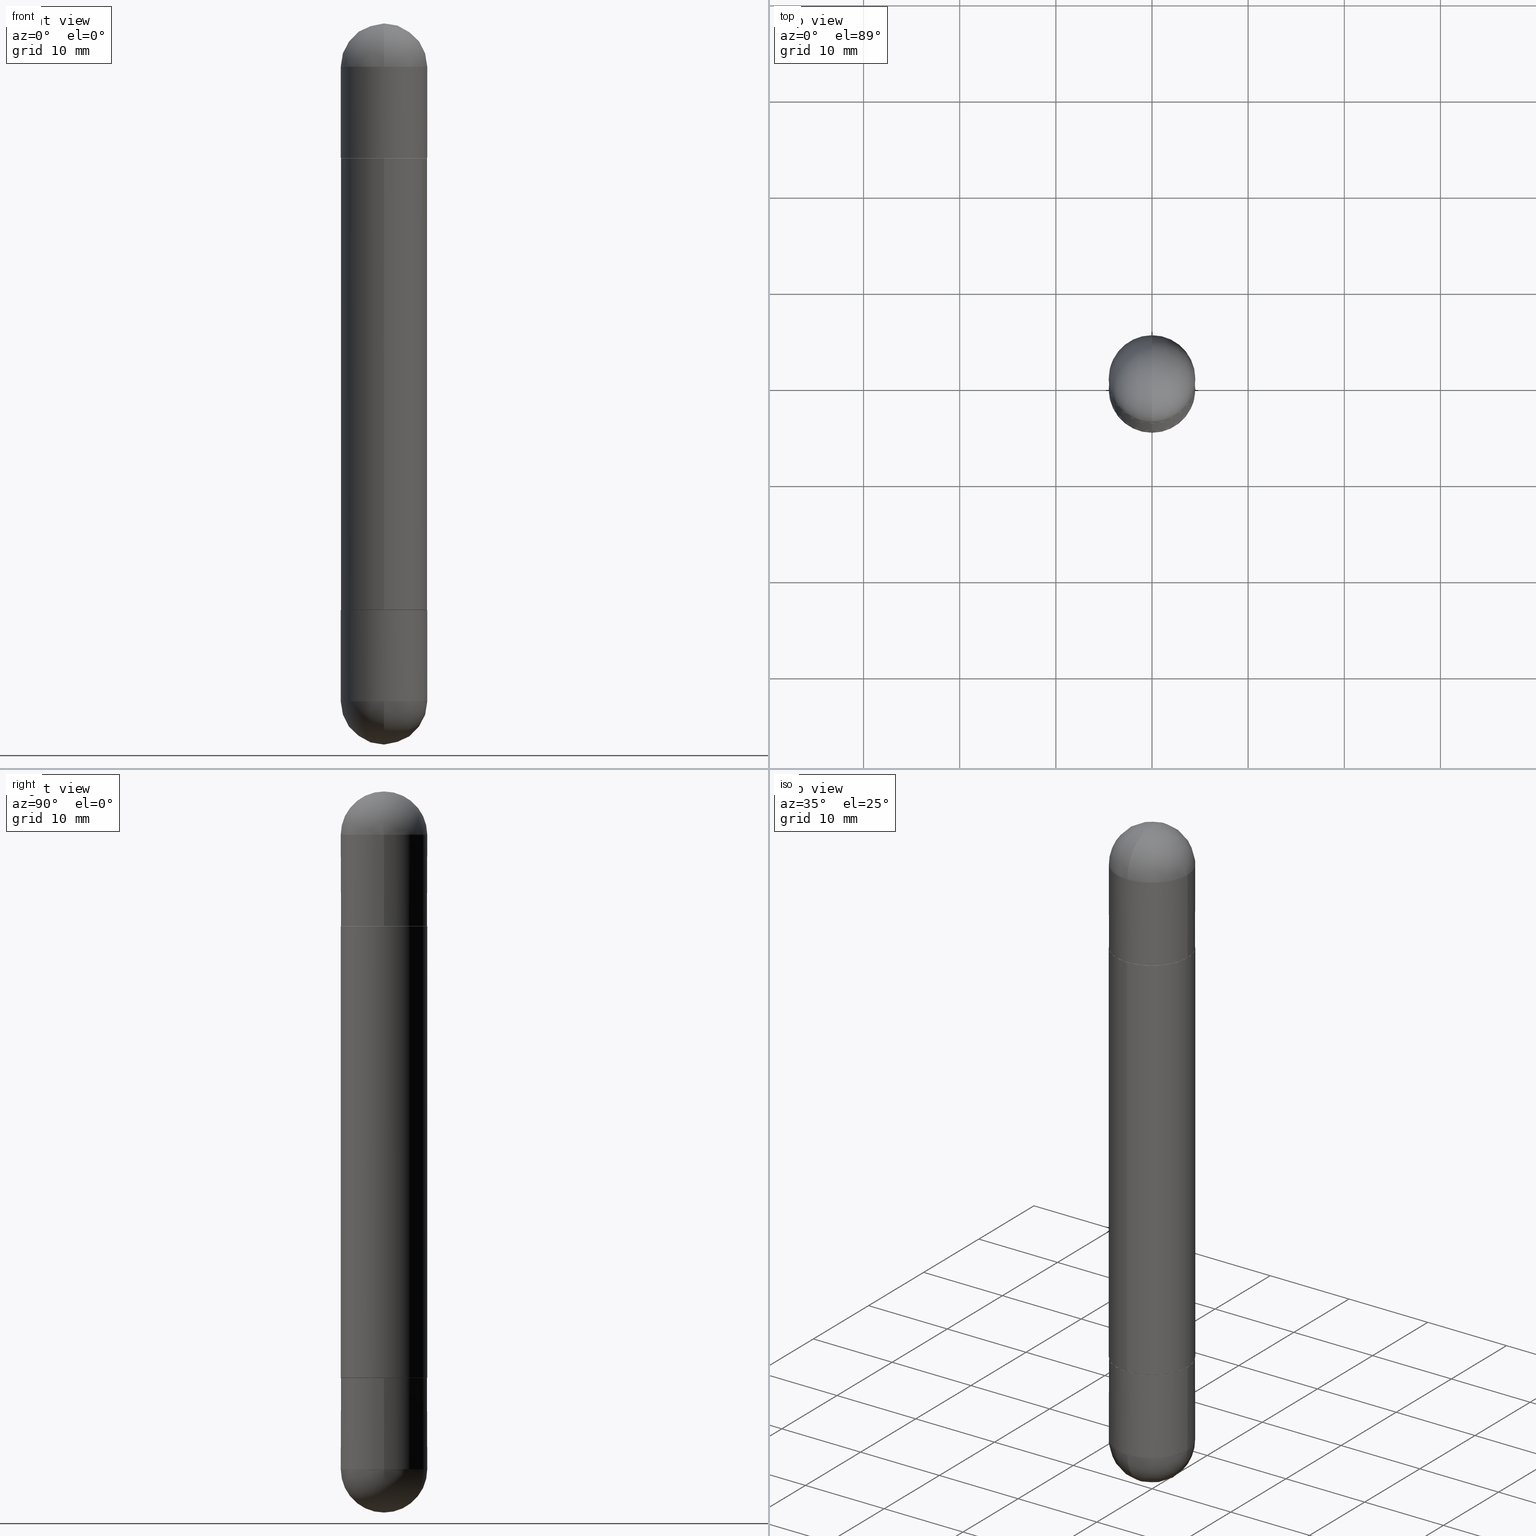
[diagram: canonical four-view strip — front | top / right | iso, engineering-drawing reading convention]
A machine part, canonical four-view strip (front | top / right | iso — engineering-drawing reading convention). The complete STEP part file that produces these views, byte-faithful:
ISO-10303-21;
HEADER;
FILE_DESCRIPTION (( 'STEP AP203' ),
    '1' );
FILE_NAME ('48980.STEP',
    '2024-03-01T12:48:40',
    ( '' ),
    ( '' ),
    'SwSTEP 2.0',
    'SolidWorks 2023',
    '' );
FILE_SCHEMA (( 'CONFIG_CONTROL_DESIGN' ));
ENDSEC;

DATA;
#1 = FACE_OUTER_BOUND ( 'NONE', #224, .T. ) ;
#2 = VERTEX_POINT ( 'NONE', #693 ) ;
#3 = CARTESIAN_POINT ( 'NONE',  ( -1.237031838352065399E-15, -0.1771500000000086894, -2.400599999999998957 ) ) ;
#4 = ADVANCED_FACE ( 'NONE', ( #311 ), #259, .T. ) ;
#5 = DIRECTION ( 'NONE',  ( -2.445468806185136597E-29, 3.491481338843145583E-15, 1.000000000000000000 ) ) ;
#6 = DIRECTION ( 'NONE',  ( 1.000000000000000000, -6.982962677686266711E-15, 0.000000000000000000 ) ) ;
#7 = CARTESIAN_POINT ( 'NONE',  ( 5.872100122249039374E-29, -8.386484512905019458E-15, -2.401599999999999735 ) ) ;
#8 = DIRECTION ( 'NONE',  ( -1.000000000000000000, 0.000000000000000000, 0.000000000000000000 ) ) ;
#9 = AXIS2_PLACEMENT_3D ( 'NONE', #785, #102, #603 ) ;
#10 = APPROVAL_PERSON_ORGANIZATION ( #372, #471, #682 ) ;
#11 = DIRECTION ( 'NONE',  ( -1.000000000000000000, 6.982962677686265922E-15, 4.883557194083112340E-29 ) ) ;
#12 = DIRECTION ( 'NONE',  ( -2.445468806185136877E-29, 3.491481338843145188E-15, -1.000000000000000000 ) ) ;
#13 = FACE_OUTER_BOUND ( 'NONE', #292, .T. ) ;
#14 = CARTESIAN_POINT ( 'NONE',  ( 6.787765491887772680E-29, -9.691130178159974964E-15, -0.1771500000000000574 ) ) ;
#15 = ORIENTED_EDGE ( 'NONE', *, *, #329, .T. ) ;
#16 = DIRECTION ( 'NONE',  ( 5.024295867787975615E-15, 0.7071067811865378028, 0.7071067811865571207 ) ) ;
#17 = CYLINDRICAL_SURFACE ( 'NONE', #97, 0.1771500000000000019 ) ;
#18 = CARTESIAN_POINT ( 'NONE',  ( -0.1771500000000000019, 1.215337220305226901E-15, -2.952799999999999869 ) ) ;
#19 = EDGE_CURVE ( 'NONE', #77, #388, #772, .T. ) ;
#20 = DIRECTION ( 'NONE',  ( 1.000000000000000000, -6.982962677686272233E-15, 0.000000000000000000 ) ) ;
#21 = UNCERTAINTY_MEASURE_WITH_UNIT (LENGTH_MEASURE( 1.000000000000000082E-05 ), #338, 'distance_accuracy_value', 'NONE');
#22 = ORIENTED_EDGE ( 'NONE', *, *, #476, .T. ) ;
#23 = DIRECTION ( 'NONE',  ( -1.000000000000000000, 6.982962677686265922E-15, -4.876176775795935793E-29 ) ) ;
#24 = DIRECTION ( 'NONE',  ( -2.445468806185136597E-29, 3.491481338843145583E-15, 1.000000000000000000 ) ) ;
#25 = AXIS2_PLACEMENT_3D ( 'NONE', #63, #817, #510 ) ;
#26 = CIRCLE ( 'NONE', #686, 0.1771500000000002517 ) ;
#27 = CARTESIAN_POINT ( 'NONE',  ( 0.1771500000000000019, -1.237031838352122197E-15, -2.952799999999999869 ) ) ;
#28 = AXIS2_PLACEMENT_3D ( 'NONE', #70, #260, #274 ) ;
#29 = EDGE_LOOP ( 'NONE', ( #358, #503, #328, #720 ) ) ;
#30 = PERSON_AND_ORGANIZATION ( #470, #428 ) ;
#31 = ORIENTED_EDGE ( 'NONE', *, *, #631, .F. ) ;
#32 = ADVANCED_FACE ( 'NONE', ( #200 ), #397, .T. ) ;
#33 = CARTESIAN_POINT ( 'NONE',  ( 0.1771500000000000019, -9.622173421717819657E-15, -0.5512000000000001343 ) ) ;
#34 = EDGE_CURVE ( 'NONE', #40, #602, #73, .T. ) ;
#35 = VERTEX_POINT ( 'NONE', #450 ) ;
#36 = DIRECTION ( 'NONE',  ( -1.000000000000000000, 6.982962677686265922E-15, -4.883557194083112340E-29 ) ) ;
#37 = AXIS2_PLACEMENT_3D ( 'NONE', #570, #444, #565 ) ;
#38 = CIRCLE ( 'NONE', #9, 0.1771500000000002517 ) ;
#39 = CIRCLE ( 'NONE', #736, 0.1771500000000000019 ) ;
#40 = VERTEX_POINT ( 'NONE', #53 ) ;
#41 = ORIENTED_EDGE ( 'NONE', *, *, #647, .T. ) ;
#42 = COORDINATED_UNIVERSAL_TIME_OFFSET ( 5, 0, .BEHIND. ) ;
#43 = CARTESIAN_POINT ( 'NONE',  ( 5.869655043916990285E-29, -8.382992472384988928E-15, -0.5522000000000002462 ) ) ;
#44 = ORIENTED_EDGE ( 'NONE', *, *, #302, .F. ) ;
#45 = CARTESIAN_POINT ( 'NONE',  ( -1.215337220305161228E-15, -0.1771500000000100772, -0.1771500000000006680 ) ) ;
#46 = EDGE_CURVE ( 'NONE', #2, #151, #169, .T. ) ;
#47 = DIRECTION ( 'NONE',  ( 6.982962677686265922E-15, 1.000000000000000000, 3.469747663417772269E-15 ) ) ;
#48 = VERTEX_POINT ( 'NONE', #326 ) ;
#49 = DATE_TIME_ROLE ( 'creation_date' ) ;
#50 = CC_DESIGN_PERSON_AND_ORGANIZATION_ASSIGNMENT ( #315, #54, ( #641 ) ) ;
#51 = LINE ( 'NONE', #807, #586 ) ;
#52 = AXIS2_PLACEMENT_3D ( 'NONE', #617, #676, #435 ) ;
#53 = CARTESIAN_POINT ( 'NONE',  ( -1.230048875674377215E-15, -0.1761500000000084110, -0.5512000000000004674 ) ) ;
#54 = PERSON_AND_ORGANIZATION_ROLE ( 'design_supplier' ) ;
#55 = DIRECTION ( 'NONE',  ( 1.000000000000000000, -6.982962677686272233E-15, 0.000000000000000000 ) ) ;
#56 = FACE_OUTER_BOUND ( 'NONE', #733, .T. ) ;
#57 = DIRECTION ( 'NONE',  ( -6.982962677686267499E-15, -1.000000000000000000, -3.489445350976209435E-15 ) ) ;
#58 = EDGE_CURVE ( 'NONE', #226, #430, #790, .T. ) ;
#59 = CALENDAR_DATE ( 2024, 1, 3 ) ;
#60 = CARTESIAN_POINT ( 'NONE',  ( 6.456645713973887554E-29, -1.016531254630002526E-14, -0.1771500000000000574 ) ) ;
#61 = CARTESIAN_POINT ( 'NONE',  ( -1.237031838352123183E-15, -0.1771500000000001962, -2.952800000000000313 ) ) ;
#62 = LINE ( 'NONE', #512, #220 ) ;
#63 = CARTESIAN_POINT ( 'NONE',  ( 0.000000000000000000, 0.000000000000000000, -2.952799999999999869 ) ) ;
#64 = DIRECTION ( 'NONE',  ( -6.982962677686267499E-15, -1.000000000000000000, -3.489445350976209435E-15 ) ) ;
#65 = CIRCLE ( 'NONE', #663, 0.1771500000000000019 ) ;
#66 = CIRCLE ( 'NONE', #402, 0.1771500000000003350 ) ;
#67 = APPROVAL_PERSON_ORGANIZATION ( #421, #347, #92 ) ;
#68 = DIRECTION ( 'NONE',  ( -2.445468806185136597E-29, 3.491481338843145583E-15, -1.000000000000000000 ) ) ;
#69 = PRODUCT ( '48980', '48980', '', ( #788 ) ) ;
#70 = CARTESIAN_POINT ( 'NONE',  ( 6.456645713973887554E-29, -1.016531254630002526E-14, -0.1771500000000000574 ) ) ;
#71 = ORIENTED_EDGE ( 'NONE', *, *, #411, .F. ) ;
#72 = DIRECTION ( 'NONE',  ( -6.982962677686265922E-15, -1.000000000000000000, 3.492040520030404421E-15 ) ) ;
#73 = LINE ( 'NONE', #386, #109 ) ;
#74 = CARTESIAN_POINT ( 'NONE',  ( 5.872100122249039374E-29, -8.386484512905019458E-15, -0.5511999999999998012 ) ) ;
#75 = EDGE_LOOP ( 'NONE', ( #547, #350, #675, #112 ) ) ;
#76 = DIRECTION ( 'NONE',  ( 2.445078332049067200E-29, -3.492040520030404815E-15, 1.000000000000000000 ) ) ;
#77 = VERTEX_POINT ( 'NONE', #742 ) ;
#78 = CARTESIAN_POINT ( 'NONE',  ( 6.456645713973887554E-29, -1.016531254630002526E-14, -0.1771500000000000574 ) ) ;
#79 = EDGE_CURVE ( 'NONE', #233, #494, #65, .T. ) ;
#80 = AXIS2_PLACEMENT_3D ( 'NONE', #7, #330, #529 ) ;
#81 = CARTESIAN_POINT ( 'NONE',  ( 1.215337220305286460E-15, 0.1771499999999950337, -1.476399999999999935 ) ) ;
#82 = AXIS2_PLACEMENT_3D ( 'NONE', #365, #495, #739 ) ;
#83 = VECTOR ( 'NONE', #211, 39.37007874015748143 ) ;
#84 = DIRECTION ( 'NONE',  ( -2.445078332049067200E-29, 3.492040520030404421E-15, -1.000000000000000000 ) ) ;
#85 = DIRECTION ( 'NONE',  ( 6.982962677686265922E-15, 1.000000000000000000, 3.469747663417772269E-15 ) ) ;
#86 = DIRECTION ( 'NONE',  ( 2.445078332049067200E-29, -3.492040520030404815E-15, 1.000000000000000000 ) ) ;
#87 = DIRECTION ( 'NONE',  ( -2.445468806185136877E-29, 3.491481338843145188E-15, -1.000000000000000000 ) ) ;
#88 = CARTESIAN_POINT ( 'NONE',  ( 6.456645713973887554E-29, -1.016531254630002526E-14, -0.1771500000000000574 ) ) ;
#89 = EDGE_LOOP ( 'NONE', ( #71, #461, #424, #325, #196 ) ) ;
#90 = FACE_OUTER_BOUND ( 'NONE', #394, .T. ) ;
#91 = DIRECTION ( 'NONE',  ( 1.000000000000000000, -6.982962677686266711E-15, 0.000000000000000000 ) ) ;
#92 = APPROVAL_ROLE ( '' ) ;
#93 = ADVANCED_BREP_SHAPE_REPRESENTATION ( '48980', ( #539, #786, #524, #515, #777, #377 ), #271 ) ;
#94 = ORIENTED_EDGE ( 'NONE', *, *, #273, .F. ) ;
#95 = DIRECTION ( 'NONE',  ( 2.438088387897960049E-29, -3.491481338843145188E-15, -1.000000000000000000 ) ) ;
#96 = DIRECTION ( 'NONE',  ( -2.445468806185136597E-29, 3.491481338843145583E-15, -1.000000000000000000 ) ) ;
#97 = AXIS2_PLACEMENT_3D ( 'NONE', #717, #96, #91 ) ;
#98 = AXIS2_PLACEMENT_3D ( 'NONE', #568, #683, #115 ) ;
#99 = PERSON_AND_ORGANIZATION_ROLE ( 'creator' ) ;
#100 = CC_DESIGN_APPROVAL ( #794, ( #699 ) ) ;
#101 = ADVANCED_FACE ( 'NONE', ( #132 ), #323, .F. ) ;
#102 = DIRECTION ( 'NONE',  ( 1.000000000000000000, -6.860497997771530774E-15, -4.840798879624142912E-29 ) ) ;
#103 = ORIENTED_EDGE ( 'NONE', *, *, #261, .T. ) ;
#104 = ORIENTED_EDGE ( 'NONE', *, *, #247, .F. ) ;
#105 = EDGE_LOOP ( 'NONE', ( #104, #463, #665, #198, #499 ) ) ;
#106 = APPROVAL_DATE_TIME ( #293, #347 ) ;
#107 = ORIENTED_EDGE ( 'NONE', *, *, #79, .T. ) ;
#108 = ORIENTED_EDGE ( 'NONE', *, *, #496, .T. ) ;
#109 = VECTOR ( 'NONE', #314, 39.37007874015748854 ) ;
#110 = AXIS2_PLACEMENT_3D ( 'NONE', #407, #280, #721 ) ;
#111 = CARTESIAN_POINT ( 'NONE',  ( 6.456645713973887554E-29, -1.016531254630002526E-14, -0.1771500000000000574 ) ) ;
#112 = ORIENTED_EDGE ( 'NONE', *, *, #559, .T. ) ;
#113 = DATE_AND_TIME ( #297, #456 ) ;
#114 = EDGE_CURVE ( 'NONE', #492, #423, #711, .T. ) ;
#115 = DIRECTION ( 'NONE',  ( -6.982962677686267499E-15, -1.000000000000000000, -3.489445350976209435E-15 ) ) ;
#116 = ADVANCED_FACE ( 'NONE', ( #189 ), #262, .T. ) ;
#117 = ORIENTED_EDGE ( 'NONE', *, *, #411, .T. ) ;
#118 = APPROVAL_STATUS ( 'not_yet_approved' ) ;
#119 = DIRECTION ( 'NONE',  ( -2.445468806185136597E-29, 3.491481338843145583E-15, 1.000000000000000000 ) ) ;
#120 = CARTESIAN_POINT ( 'NONE',  ( 6.897435148395990892E-29, -1.077298115645264157E-14, 2.048885995248197414E-16 ) ) ;
#121 = ORIENTED_EDGE ( 'NONE', *, *, #212, .T. ) ;
#122 = DATE_AND_TIME ( #434, #479 ) ;
#123 = CLOSED_SHELL ( 'NONE', ( #4, #443, #653, #710, #165 ) ) ;
#124 = CARTESIAN_POINT ( 'NONE',  ( 6.787765491887772680E-29, -9.691130178159974964E-15, -0.1771500000000000574 ) ) ;
#125 = VECTOR ( 'NONE', #493, 39.37007874015748854 ) ;
#126 = EDGE_CURVE ( 'NONE', #246, #233, #355, .T. ) ;
#127 = LOCAL_TIME ( 7, 48, 40.00000000000000000, #341 ) ;
#128 = EDGE_LOOP ( 'NONE', ( #173, #545, #103, #354 ) ) ;
#129 = FACE_OUTER_BOUND ( 'NONE', #75, .T. ) ;
#130 = EDGE_CURVE ( 'NONE', #489, #147, #139, .T. ) ;
#131 = LINE ( 'NONE', #61, #760 ) ;
#132 = FACE_OUTER_BOUND ( 'NONE', #729, .T. ) ;
#133 = CARTESIAN_POINT ( 'NONE',  ( 1.215337220305227887E-15, 0.1771500000000001962, -2.952799999999998981 ) ) ;
#134 = FACE_OUTER_BOUND ( 'NONE', #295, .T. ) ;
#135 = CARTESIAN_POINT ( 'NONE',  ( 0.000000000000000000, 0.000000000000000000, -2.952799999999999869 ) ) ;
#136 = FACE_OUTER_BOUND ( 'NONE', #537, .T. ) ;
#137 = ORIENTED_EDGE ( 'NONE', *, *, #294, .F. ) ;
#138 = CARTESIAN_POINT ( 'NONE',  ( 6.456645713973887554E-29, -1.016531254630002526E-14, -2.775649999999999729 ) ) ;
#139 = CIRCLE ( 'NONE', #305, 0.1771500000000000019 ) ;
#140 = CIRCLE ( 'NONE', #158, 0.1761500000000000010 ) ;
#141 = VECTOR ( 'NONE', #594, 39.37007874015748143 ) ;
#142 = ORIENTED_EDGE ( 'NONE', *, *, #114, .T. ) ;
#143 = EDGE_CURVE ( 'NONE', #690, #240, #532, .T. ) ;
#144 = FACE_OUTER_BOUND ( 'NONE', #625, .T. ) ;
#145 = ORIENTED_EDGE ( 'NONE', *, *, #241, .T. ) ;
#146 = CARTESIAN_POINT ( 'NONE',  ( 6.456645713973887554E-29, -1.016531254630002526E-14, -0.1771500000000000574 ) ) ;
#147 = VERTEX_POINT ( 'NONE', #592 ) ;
#148 = DIRECTION ( 'NONE',  ( -6.982962677686265922E-15, -1.000000000000000000, -3.492040520030404421E-15 ) ) ;
#149 = DIRECTION ( 'NONE',  ( 2.445078332049067200E-29, -3.492040520030404815E-15, 1.000000000000000000 ) ) ;
#150 = CARTESIAN_POINT ( 'NONE',  ( 1.237031838352189250E-15, 0.1771499999999902042, -2.775650000000000173 ) ) ;
#151 = VERTEX_POINT ( 'NONE', #81 ) ;
#152 = DIRECTION ( 'NONE',  ( -1.000000000000000000, 6.982962677686265922E-15, 4.876176775795935793E-29 ) ) ;
#153 = DIRECTION ( 'NONE',  ( -6.982962677686267499E-15, -1.000000000000000000, -3.489445350976209435E-15 ) ) ;
#154 = DIRECTION ( 'NONE',  ( 0.000000000000000000, 0.000000000000000000, 1.000000000000000000 ) ) ;
#155 = ORIENTED_EDGE ( 'NONE', *, *, #605, .F. ) ;
#156 = ADVANCED_FACE ( 'NONE', ( #219 ), #745, .T. ) ;
#157 = CLOSED_SHELL ( 'NONE', ( #32, #342, #588, #662, #116 ) ) ;
#158 = AXIS2_PLACEMENT_3D ( 'NONE', #672, #633, #811 ) ;
#159 = AXIS2_PLACEMENT_3D ( 'NONE', #74, #149, #64 ) ;
#160 = FACE_OUTER_BOUND ( 'NONE', #186, .T. ) ;
#161 = DIRECTION ( 'NONE',  ( 1.000000000000000000, -6.982962677686272233E-15, 0.000000000000000000 ) ) ;
#162 = DIRECTION ( 'NONE',  ( 2.445468806185136597E-29, -3.491481338843145583E-15, 1.000000000000000000 ) ) ;
#163 = ORIENTED_EDGE ( 'NONE', *, *, #496, .F. ) ;
#164 =( LENGTH_UNIT ( ) NAMED_UNIT ( * ) SI_UNIT ( $, .METRE. ) );
#165 = ADVANCED_FACE ( 'NONE', ( #707 ), #17, .T. ) ;
#166 = ORIENTED_EDGE ( 'NONE', *, *, #229, .T. ) ;
#167 = CYLINDRICAL_SURFACE ( 'NONE', #110, 0.1771500000000001962 ) ;
#168 = DIRECTION ( 'NONE',  ( 1.000000000000000000, -6.982962677686266711E-15, 4.876176775795935793E-29 ) ) ;
#169 = CIRCLE ( 'NONE', #37, 0.1771500000000001962 ) ;
#170 = AXIS2_PLACEMENT_3D ( 'NONE', #525, #764, #595 ) ;
#171 =( NAMED_UNIT ( * ) PLANE_ANGLE_UNIT ( ) SI_UNIT ( $, .RADIAN. ) );
#172 = AXIS2_PLACEMENT_3D ( 'NONE', #783, #713, #607 ) ;
#173 = ORIENTED_EDGE ( 'NONE', *, *, #143, .F. ) ;
#174 = ORIENTED_EDGE ( 'NONE', *, *, #500, .T. ) ;
#175 = ADVANCED_FACE ( 'NONE', ( #781 ), #228, .T. ) ;
#176 = EDGE_LOOP ( 'NONE', ( #230, #667 ) ) ;
#177 = PERSON_AND_ORGANIZATION_ROLE ( 'classification_officer' ) ;
#178 = AXIS2_PLACEMENT_3D ( 'NONE', #808, #752, #254 ) ;
#179 = DIRECTION ( 'NONE',  ( -6.982962677686265133E-15, -1.000000000000000000, 3.084220145260240702E-15 ) ) ;
#180 = CC_DESIGN_APPROVAL ( #347, ( #754 ) ) ;
#181 = FACE_OUTER_BOUND ( 'NONE', #128, .T. ) ;
#182 = DIRECTION ( 'NONE',  ( 1.000000000000000000, -6.982962677686265922E-15, -4.883557194083112340E-29 ) ) ;
#183 = VERTEX_POINT ( 'NONE', #651 ) ;
#184 = DIRECTION ( 'NONE',  ( -2.445468806185136597E-29, 3.491481338843145583E-15, 1.000000000000000000 ) ) ;
#185 = LINE ( 'NONE', #622, #415 ) ;
#186 = EDGE_LOOP ( 'NONE', ( #433, #578, #540, #250 ) ) ;
#187 = EDGE_CURVE ( 'NONE', #504, #797, #698, .T. ) ;
#188 = CARTESIAN_POINT ( 'NONE',  ( 6.787765491887772680E-29, -9.691130178159974964E-15, -0.1771500000000000574 ) ) ;
#189 = FACE_OUTER_BOUND ( 'NONE', #352, .T. ) ;
#190 = PERSON_AND_ORGANIZATION_ROLE ( 'creator' ) ;
#191 = DIRECTION ( 'NONE',  ( -4.937700262164462845E-15, -0.7071067811865329178, 0.7071067811865620056 ) ) ;
#192 = CIRCLE ( 'NONE', #685, 0.1761500000000000010 ) ;
#193 = CARTESIAN_POINT ( 'NONE',  ( 0.1771500000000000019, -9.622173421717819657E-15, -0.5512000000000001343 ) ) ;
#194 = DIRECTION ( 'NONE',  ( -2.445468806185136597E-29, 3.491481338843145583E-15, 1.000000000000000000 ) ) ;
#195 = CARTESIAN_POINT ( 'NONE',  ( 6.787765491887772680E-29, -9.691130178159974964E-15, -2.775649999999999729 ) ) ;
#196 = ORIENTED_EDGE ( 'NONE', *, *, #490, .F. ) ;
#197 = CARTESIAN_POINT ( 'NONE',  ( 6.787765491887772680E-29, -9.691130178159974964E-15, -0.1771500000000000574 ) ) ;
#198 = ORIENTED_EDGE ( 'NONE', *, *, #273, .T. ) ;
#199 = ORIENTED_EDGE ( 'NONE', *, *, #58, .T. ) ;
#200 = FACE_OUTER_BOUND ( 'NONE', #812, .T. ) ;
#201 = CARTESIAN_POINT ( 'NONE',  ( 1.215337220305287643E-15, 0.1771499999999919250, -0.5521999999999995801 ) ) ;
#202 = SPHERICAL_SURFACE ( 'NONE', #746, 0.1771500000000002517 ) ;
#203 = CLOSED_SHELL ( 'NONE', ( #805, #728, #451, #101, #239, #776 ) ) ;
#204 = VERTEX_POINT ( 'NONE', #120 ) ;
#205 = AXIS2_PLACEMENT_3D ( 'NONE', #138, #650, #696 ) ;
#206 = CC_DESIGN_PERSON_AND_ORGANIZATION_ASSIGNMENT ( #304, #190, ( #641 ) ) ;
#207 = CONICAL_SURFACE ( 'NONE', #507, 0.1761500000000000010, 0.7853981633974311816 ) ;
#208 = DIRECTION ( 'NONE',  ( -6.982962677686267499E-15, -1.000000000000000000, 3.101729200867741238E-15 ) ) ;
#209 = CARTESIAN_POINT ( 'NONE',  ( 1.237031838352189250E-15, 0.1771499999999902042, -0.1771499999999994468 ) ) ;
#210 = CARTESIAN_POINT ( 'NONE',  ( 5.872100122249039374E-29, -8.386484512905019458E-15, -0.5511999999999998012 ) ) ;
#211 = DIRECTION ( 'NONE',  ( -2.445078332049067200E-29, 3.492040520030404421E-15, -1.000000000000000000 ) ) ;
#212 = EDGE_CURVE ( 'NONE', #240, #336, #131, .T. ) ;
#213 = DIRECTION ( 'NONE',  ( 2.445078332049067200E-29, -3.492040520030404815E-15, 1.000000000000000000 ) ) ;
#214 = CARTESIAN_POINT ( 'NONE',  ( 5.872100122249039374E-29, -8.386484512905019458E-15, -0.5511999999999998012 ) ) ;
#215 = CARTESIAN_POINT ( 'NONE',  ( 0.1771500000000000019, -1.027516771911496009E-14, -0.1771500000000000574 ) ) ;
#216 = DIRECTION ( 'NONE',  ( 2.445468806185136597E-29, -3.491481338843145583E-15, 1.000000000000000000 ) ) ;
#217 = ORIENTED_EDGE ( 'NONE', *, *, #688, .F. ) ;
#218 = CARTESIAN_POINT ( 'NONE',  ( 5.869655043916990285E-29, -8.382992472384988928E-15, -0.5522000000000002462 ) ) ;
#219 = FACE_OUTER_BOUND ( 'NONE', #288, .T. ) ;
#220 = VECTOR ( 'NONE', #815, 39.37007874015748854 ) ;
#221 = AXIS2_PLACEMENT_3D ( 'NONE', #462, #582, #514 ) ;
#222 = CYLINDRICAL_SURFACE ( 'NONE', #172, 0.1771500000000001962 ) ;
#223 = LINE ( 'NONE', #391, #373 ) ;
#224 = EDGE_LOOP ( 'NONE', ( #15, #486 ) ) ;
#225 = DIRECTION ( 'NONE',  ( 1.000000000000000000, 0.000000000000000000, 0.000000000000000000 ) ) ;
#226 = VERTEX_POINT ( 'NONE', #282 ) ;
#227 = CARTESIAN_POINT ( 'NONE',  ( 1.251621029041475058E-15, 0.1761499999999916188, -2.401600000000000623 ) ) ;
#228 = CYLINDRICAL_SURFACE ( 'NONE', #344, 0.1771500000000000019 ) ;
#229 = EDGE_CURVE ( 'NONE', #797, #489, #269, .T. ) ;
#230 = ORIENTED_EDGE ( 'NONE', *, *, #629, .F. ) ;
#231 = CARTESIAN_POINT ( 'NONE',  ( -1.258726456398951820E-15, -0.1771500000000100772, -2.775649999999999284 ) ) ;
#232 = CIRCLE ( 'NONE', #599, 0.1771500000000003350 ) ;
#233 = VERTEX_POINT ( 'NONE', #150 ) ;
#234 = AXIS2_PLACEMENT_3D ( 'NONE', #60, #316, #689 ) ;
#235 = CC_DESIGN_SECURITY_CLASSIFICATION ( #699, ( #641 ) ) ;
#236 = ORIENTED_EDGE ( 'NONE', *, *, #476, .F. ) ;
#237 = VERTEX_POINT ( 'NONE', #709 ) ;
#238 = VERTEX_POINT ( 'NONE', #533 ) ;
#239 = ADVANCED_FACE ( 'NONE', ( #460 ), #519, .T. ) ;
#240 = VERTEX_POINT ( 'NONE', #399 ) ;
#241 = EDGE_CURVE ( 'NONE', #423, #492, #722, .T. ) ;
#242 = LINE ( 'NONE', #628, #455 ) ;
#243 = ORIENTED_EDGE ( 'NONE', *, *, #629, .T. ) ;
#244 = CIRCLE ( 'NONE', #345, 0.1771500000000000019 ) ;
#245 = CARTESIAN_POINT ( 'NONE',  ( 5.873037884934223228E-29, -8.385141583365697263E-15, -2.401599999999999735 ) ) ;
#246 = VERTEX_POINT ( 'NONE', #715 ) ;
#247 = EDGE_CURVE ( 'NONE', #797, #238, #223, .T. ) ;
#248 = DATE_TIME_ROLE ( 'classification_date' ) ;
#249 = CARTESIAN_POINT ( 'NONE',  ( 1.237031838352189250E-15, 0.1771499999999902042, -0.1771499999999994468 ) ) ;
#250 = ORIENTED_EDGE ( 'NONE', *, *, #810, .F. ) ;
#251 = EDGE_CURVE ( 'NONE', #767, #233, #548, .T. ) ;
#252 = CARTESIAN_POINT ( 'NONE',  ( -1.237031838352065793E-15, -0.1771500000000087172, -0.5522000000000008013 ) ) ;
#253 = SPHERICAL_SURFACE ( 'NONE', #505, 0.1771500000000002517 ) ;
#254 = DIRECTION ( 'NONE',  ( -6.982962677686265133E-15, -1.000000000000000000, -3.469747663417770691E-15 ) ) ;
#255 = AXIS2_PLACEMENT_3D ( 'NONE', #382, #759, #148 ) ;
#256 = DIRECTION ( 'NONE',  ( -6.982962677686265922E-15, -1.000000000000000000, 0.000000000000000000 ) ) ;
#257 = AXIS2_PLACEMENT_3D ( 'NONE', #758, #154, #8 ) ;
#258 = CIRCLE ( 'NONE', #309, 0.1771500000000001962 ) ;
#259 = CYLINDRICAL_SURFACE ( 'NONE', #802, 0.1771500000000000019 ) ;
#260 = DIRECTION ( 'NONE',  ( 1.000000000000000000, -6.982962677686265922E-15, -4.883557194083112340E-29 ) ) ;
#261 = EDGE_CURVE ( 'NONE', #644, #336, #232, .T. ) ;
#262 = CYLINDRICAL_SURFACE ( 'NONE', #25, 0.1771500000000000019 ) ;
#263 = PLANE ( 'NONE',  #687 ) ;
#264 = LINE ( 'NONE', #227, #803 ) ;
#265 = EDGE_LOOP ( 'NONE', ( #668, #174, #795, #317 ) ) ;
#266 = CARTESIAN_POINT ( 'NONE',  ( 6.787765491887772680E-29, -9.691130178159974964E-15, -0.1771500000000000574 ) ) ;
#267 = CARTESIAN_POINT ( 'NONE',  ( 1.215337220305227887E-15, 0.1771500000000001962, -2.952799999999998981 ) ) ;
#268 = FACE_OUTER_BOUND ( 'NONE', #413, .T. ) ;
#269 = CIRCLE ( 'NONE', #414, 0.1771500000000000019 ) ;
#270 = AXIS2_PLACEMENT_3D ( 'NONE', #214, #531, #337 ) ;
#271 =( GEOMETRIC_REPRESENTATION_CONTEXT ( 3 ) GLOBAL_UNCERTAINTY_ASSIGNED_CONTEXT ( ( #21 ) ) GLOBAL_UNIT_ASSIGNED_CONTEXT ( ( #338, #171, #604 ) ) REPRESENTATION_CONTEXT ( 'NONE', 'WORKASPACE' ) );
#272 = PRODUCT_DEFINITION_SHAPE ( 'NONE', 'NONE',  #754 ) ;
#273 = EDGE_CURVE ( 'NONE', #147, #796, #590, .T. ) ;
#274 = DIRECTION ( 'NONE',  ( 6.982962677686265922E-15, 1.000000000000000000, 3.469747663417772269E-15 ) ) ;
#275 = DIRECTION ( 'NONE',  ( -2.445078332049067200E-29, 3.492040520030404421E-15, -1.000000000000000000 ) ) ;
#276 = CC_DESIGN_DATE_AND_TIME_ASSIGNMENT ( #312, #248, ( #699 ) ) ;
#277 = PLANE ( 'NONE',  #221 ) ;
#278 = DIRECTION ( 'NONE',  ( -6.982962677686267499E-15, -1.000000000000000000, -3.489445350976209435E-15 ) ) ;
#279 = ORIENTED_EDGE ( 'NONE', *, *, #559, .F. ) ;
#280 = DIRECTION ( 'NONE',  ( -2.445078332049067200E-29, 3.492040520030404815E-15, -1.000000000000000000 ) ) ;
#281 = DIRECTION ( 'NONE',  ( 6.982962677686265922E-15, 1.000000000000000000, -3.084220145260241885E-15 ) ) ;
#282 = CARTESIAN_POINT ( 'NONE',  ( -0.1771500000000000019, -7.822798660457608227E-15, -0.5512000000000001343 ) ) ;
#283 = CIRCLE ( 'NONE', #723, 0.1771500000000000019 ) ;
#284 = AXIS2_PLACEMENT_3D ( 'NONE', #327, #520, #446 ) ;
#285 = CALENDAR_DATE ( 2024, 1, 3 ) ;
#286 = ORIENTED_EDGE ( 'NONE', *, *, #631, .T. ) ;
#287 = EDGE_CURVE ( 'NONE', #767, #362, #521, .T. ) ;
#288 = EDGE_LOOP ( 'NONE', ( #142, #480, #236, #678 ) ) ;
#289 = ORIENTED_EDGE ( 'NONE', *, *, #789, .T. ) ;
#290 = ORIENTED_EDGE ( 'NONE', *, *, #751, .T. ) ;
#291 = CIRCLE ( 'NONE', #357, 0.1771500000000002517 ) ;
#292 = EDGE_LOOP ( 'NONE', ( #137, #41, #554, #166 ) ) ;
#293 = DATE_AND_TIME ( #285, #127 ) ;
#294 = EDGE_CURVE ( 'NONE', #526, #489, #291, .T. ) ;
#295 = EDGE_LOOP ( 'NONE', ( #403, #419, #349, #681 ) ) ;
#296 = ORIENTED_EDGE ( 'NONE', *, *, #541, .T. ) ;
#297 = CALENDAR_DATE ( 2024, 1, 3 ) ;
#298 = DIRECTION ( 'NONE',  ( 2.445078332049067200E-29, -3.492040520030404815E-15, 1.000000000000000000 ) ) ;
#299 = ORIENTED_EDGE ( 'NONE', *, *, #688, .T. ) ;
#300 = COORDINATED_UNIVERSAL_TIME_OFFSET ( 5, 0, .BEHIND. ) ;
#301 = LINE ( 'NONE', #307, #125 ) ;
#302 = EDGE_CURVE ( 'NONE', #793, #749, #655, .T. ) ;
#303 = EDGE_LOOP ( 'NONE', ( #600, #671 ) ) ;
#304 = PERSON_AND_ORGANIZATION ( #470, #428 ) ;
#305 = AXIS2_PLACEMENT_3D ( 'NONE', #266, #458, #703 ) ;
#306 = CIRCLE ( 'NONE', #478, 0.1771500000000000019 ) ;
#307 = CARTESIAN_POINT ( 'NONE',  ( 1.208476722307514059E-15, 0.1761499999999916188, -0.5511999999999992461 ) ) ;
#308 = DESIGN_CONTEXT ( 'detailed design', #481, 'design' ) ;
#309 = AXIS2_PLACEMENT_3D ( 'NONE', #523, #765, #704 ) ;
#310 = ORIENTED_EDGE ( 'NONE', *, *, #557, .T. ) ;
#311 = FACE_OUTER_BOUND ( 'NONE', #702, .T. ) ;
#312 = DATE_AND_TIME ( #59, #804 ) ;
#313 = CARTESIAN_POINT ( 'NONE',  ( -0.1771500000000000019, -7.779409424363817635E-15, -2.775649999999999729 ) ) ;
#314 = DIRECTION ( 'NONE',  ( -4.937700262164462845E-15, -0.7071067811865329178, -0.7071067811865620056 ) ) ;
#315 = PERSON_AND_ORGANIZATION ( #470, #428 ) ;
#316 = DIRECTION ( 'NONE',  ( 1.000000000000000000, -6.982962677686265922E-15, -4.883557194083112340E-29 ) ) ;
#317 = ORIENTED_EDGE ( 'NONE', *, *, #557, .F. ) ;
#318 = EDGE_CURVE ( 'NONE', #602, #48, #426, .T. ) ;
#319 = DIRECTION ( 'NONE',  ( -2.445078332049066919E-29, 3.492040520030404421E-15, -1.000000000000000000 ) ) ;
#320 = AXIS2_PLACEMENT_3D ( 'NONE', #597, #95, #23 ) ;
#321 = VECTOR ( 'NONE', #659, 39.37007874015748143 ) ;
#322 = DIRECTION ( 'NONE',  ( 2.445468806185136597E-29, -3.491481338843145583E-15, 1.000000000000000000 ) ) ;
#323 = PLANE ( 'NONE',  #255 ) ;
#324 = DIRECTION ( 'NONE',  ( -2.445078332049067200E-29, 3.492040520030404815E-15, -1.000000000000000000 ) ) ;
#325 = ORIENTED_EDGE ( 'NONE', *, *, #566, .T. ) ;
#326 = CARTESIAN_POINT ( 'NONE',  ( 1.215337220305287643E-15, 0.1771499999999919250, -0.5521999999999995801 ) ) ;
#327 = CARTESIAN_POINT ( 'NONE',  ( 5.872100122249039374E-29, -8.386484512905019458E-15, -2.401599999999999735 ) ) ;
#328 = ORIENTED_EDGE ( 'NONE', *, *, #34, .T. ) ;
#329 = EDGE_CURVE ( 'NONE', #388, #77, #192, .T. ) ;
#330 = DIRECTION ( 'NONE',  ( -2.445078332049067200E-29, 3.492040520030404815E-15, 1.000000000000000000 ) ) ;
#331 = AXIS2_PLACEMENT_3D ( 'NONE', #245, #119, #502 ) ;
#332 = ADVANCED_FACE ( 'NONE', ( #757 ), #645, .F. ) ;
#333 = AXIS2_PLACEMENT_3D ( 'NONE', #43, #298, #556 ) ;
#334 = CYLINDRICAL_SURFACE ( 'NONE', #467, 0.1771500000000000019 ) ;
#335 = DIRECTION ( 'NONE',  ( -2.445078332049067200E-29, 3.492040520030404815E-15, -1.000000000000000000 ) ) ;
#336 = VERTEX_POINT ( 'NONE', #3 ) ;
#337 = DIRECTION ( 'NONE',  ( -6.982962677686267499E-15, -1.000000000000000000, -3.489445350976209435E-15 ) ) ;
#338 =( CONVERSION_BASED_UNIT ( 'INCH', #353 ) LENGTH_UNIT ( ) NAMED_UNIT ( #445 ) );
#339 = CARTESIAN_POINT ( 'NONE',  ( 6.787765491887772680E-29, -9.691130178159974964E-15, -0.1771500000000000574 ) ) ;
#340 = ORIENTED_EDGE ( 'NONE', *, *, #329, .F. ) ;
#341 = COORDINATED_UNIVERSAL_TIME_OFFSET ( 5, 0, .BEHIND. ) ;
#342 = ADVANCED_FACE ( 'NONE', ( #268 ), #202, .T. ) ;
#343 = EDGE_LOOP ( 'NONE', ( #727, #163 ) ) ;
#344 = AXIS2_PLACEMENT_3D ( 'NONE', #408, #24, #168 ) ;
#345 = AXIS2_PLACEMENT_3D ( 'NONE', #508, #750, #614 ) ;
#346 = CC_DESIGN_APPROVAL ( #471, ( #641 ) ) ;
#347 = APPROVAL ( #669, 'UNSPECIFIED' ) ;
#348 = CARTESIAN_POINT ( 'NONE',  ( -0.1771500000000000019, -7.822798660457609805E-15, -0.1771500000000000574 ) ) ;
#349 = ORIENTED_EDGE ( 'NONE', *, *, #130, .T. ) ;
#350 = ORIENTED_EDGE ( 'NONE', *, *, #605, .T. ) ;
#351 = EDGE_CURVE ( 'NONE', #423, #644, #264, .T. ) ;
#352 = EDGE_LOOP ( 'NONE', ( #616, #551, #44, #392, #243 ) ) ;
#353 = LENGTH_MEASURE_WITH_UNIT ( LENGTH_MEASURE( 0.02539999999999999897 ), #164 );
#354 = ORIENTED_EDGE ( 'NONE', *, *, #212, .F. ) ;
#355 = CIRCLE ( 'NONE', #813, 0.1771500000000000019 ) ;
#356 = ADVANCED_FACE ( 'NONE', ( #410 ), #167, .T. ) ;
#357 = AXIS2_PLACEMENT_3D ( 'NONE', #88, #579, #766 ) ;
#358 = ORIENTED_EDGE ( 'NONE', *, *, #431, .F. ) ;
#359 = AXIS2_PLACEMENT_3D ( 'NONE', #405, #36, #281 ) ;
#360 = DATE_AND_TIME ( #620, #792 ) ;
#361 = DIRECTION ( 'NONE',  ( 2.445468806185136597E-29, -3.491481338843145583E-15, 1.000000000000000000 ) ) ;
#362 = VERTEX_POINT ( 'NONE', #231 ) ;
#363 = SECURITY_CLASSIFICATION_LEVEL ( 'unclassified' ) ;
#364 = CARTESIAN_POINT ( 'NONE',  ( 5.869655043916990285E-29, -8.382992472384988928E-15, -2.400599999999999401 ) ) ;
#365 = CARTESIAN_POINT ( 'NONE',  ( 0.000000000000000000, 0.000000000000000000, -2.952799999999999869 ) ) ;
#366 = DIRECTION ( 'NONE',  ( 1.000000000000000000, -6.982962677686272233E-15, 0.000000000000000000 ) ) ;
#367 = ORIENTED_EDGE ( 'NONE', *, *, #810, .T. ) ;
#368 = COORDINATED_UNIVERSAL_TIME_OFFSET ( 5, 0, .BEHIND. ) ;
#369 = LINE ( 'NONE', #432, #562 ) ;
#370 = EDGE_CURVE ( 'NONE', #48, #602, #66, .T. ) ;
#371 = ORIENTED_EDGE ( 'NONE', *, *, #287, .F. ) ;
#372 = PERSON_AND_ORGANIZATION ( #470, #428 ) ;
#373 = VECTOR ( 'NONE', #12, 39.37007874015748143 ) ;
#374 = AXIS2_PLACEMENT_3D ( 'NONE', #339, #216, #20 ) ;
#375 = EDGE_CURVE ( 'NONE', #204, #35, #38, .T. ) ;
#376 = CARTESIAN_POINT ( 'NONE',  ( 6.787765491887772680E-29, -9.691130178159974964E-15, -2.775649999999999729 ) ) ;
#377 = AXIS2_PLACEMENT_3D ( 'NONE', #475, #409, #225 ) ;
#378 = DIRECTION ( 'NONE',  ( -2.445468806185136597E-29, 3.491481338843145583E-15, -1.000000000000000000 ) ) ;
#379 = APPROVAL_DATE_TIME ( #113, #794 ) ;
#380 = CARTESIAN_POINT ( 'NONE',  ( 6.897435148395990892E-29, -1.077298115645264157E-14, 2.048885995248197414E-16 ) ) ;
#381 = CARTESIAN_POINT ( 'NONE',  ( 6.456645713973887554E-29, -1.016531254630002526E-14, -2.775649999999999729 ) ) ;
#382 = CARTESIAN_POINT ( 'NONE',  ( 5.872100122249039374E-29, -8.386484512905019458E-15, -0.5511999999999998012 ) ) ;
#383 = ADVANCED_FACE ( 'NONE', ( #90 ), #573, .T. ) ;
#384 = FACE_OUTER_BOUND ( 'NONE', #343, .T. ) ;
#385 = ADVANCED_FACE ( 'NONE', ( #771 ), #660, .F. ) ;
#386 = CARTESIAN_POINT ( 'NONE',  ( -1.230048875674377215E-15, -0.1761500000000084110, -0.5512000000000004674 ) ) ;
#387 = DIRECTION ( 'NONE',  ( 1.000000000000000000, -6.982962677686266711E-15, 0.000000000000000000 ) ) ;
#388 = VERTEX_POINT ( 'NONE', #536 ) ;
#389 = CIRCLE ( 'NONE', #610, 0.1771500000000000019 ) ;
#390 = CIRCLE ( 'NONE', #601, 0.1771500000000000019 ) ;
#391 = CARTESIAN_POINT ( 'NONE',  ( -0.1771500000000000019, 1.215337220305226901E-15, -2.952799999999999869 ) ) ;
#392 = ORIENTED_EDGE ( 'NONE', *, *, #779, .T. ) ;
#393 = CARTESIAN_POINT ( 'NONE',  ( 6.897435148395990892E-29, -1.077298115645264157E-14, -2.952799999999999869 ) ) ;
#394 = EDGE_LOOP ( 'NONE', ( #487, #340, #310, #286 ) ) ;
#395 = ADVANCED_FACE ( 'NONE', ( #181 ), #677, .T. ) ;
#396 = CARTESIAN_POINT ( 'NONE',  ( 5.869655043916990285E-29, -8.382992472384988928E-15, -2.400599999999999401 ) ) ;
#397 = CYLINDRICAL_SURFACE ( 'NONE', #425, 0.1771500000000000019 ) ;
#398 = DIRECTION ( 'NONE',  ( 2.445468806185136597E-29, -3.491481338843145583E-15, 1.000000000000000000 ) ) ;
#399 = CARTESIAN_POINT ( 'NONE',  ( -1.237031838352065793E-15, -0.1771500000000087172, -0.5522000000000008013 ) ) ;
#400 = FACE_OUTER_BOUND ( 'NONE', #176, .T. ) ;
#401 = CARTESIAN_POINT ( 'NONE',  ( 5.872100122249039374E-29, -8.386484512905019458E-15, -2.401599999999999735 ) ) ;
#402 = AXIS2_PLACEMENT_3D ( 'NONE', #218, #86, #544 ) ;
#403 = ORIENTED_EDGE ( 'NONE', *, *, #647, .F. ) ;
#404 = DIRECTION ( 'NONE',  ( -2.445078332049067200E-29, 3.492040520030404815E-15, 1.000000000000000000 ) ) ;
#405 = CARTESIAN_POINT ( 'NONE',  ( 6.456645713973887554E-29, -1.016531254630002526E-14, -2.775649999999999729 ) ) ;
#406 = DIRECTION ( 'NONE',  ( 2.445468806185136597E-29, -3.491481338843145583E-15, 1.000000000000000000 ) ) ;
#407 = CARTESIAN_POINT ( 'NONE',  ( 0.000000000000000000, 0.000000000000000000, -2.952799999999999869 ) ) ;
#408 = CARTESIAN_POINT ( 'NONE',  ( 0.000000000000000000, 0.000000000000000000, 0.000000000000000000 ) ) ;
#409 = DIRECTION ( 'NONE',  ( 0.000000000000000000, 0.000000000000000000, 1.000000000000000000 ) ) ;
#410 = FACE_OUTER_BOUND ( 'NONE', #563, .T. ) ;
#411 = EDGE_CURVE ( 'NONE', #494, #474, #185, .T. ) ;
#412 = PERSON_AND_ORGANIZATION ( #470, #428 ) ;
#413 = EDGE_LOOP ( 'NONE', ( #155, #787, #290, #509 ) ) ;
#414 = AXIS2_PLACEMENT_3D ( 'NONE', #14, #406, #658 ) ;
#415 = VECTOR ( 'NONE', #630, 39.37007874015748143 ) ;
#416 = AXIS2_PLACEMENT_3D ( 'NONE', #643, #453, #152 ) ;
#417 = ORIENTED_EDGE ( 'NONE', *, *, #126, .F. ) ;
#418 = ADVANCED_FACE ( 'NONE', ( #56 ), #253, .T. ) ;
#419 = ORIENTED_EDGE ( 'NONE', *, *, #294, .T. ) ;
#420 = ORIENTED_EDGE ( 'NONE', *, *, #528, .T. ) ;
#421 = PERSON_AND_ORGANIZATION ( #470, #428 ) ;
#422 = CC_DESIGN_PERSON_AND_ORGANIZATION_ASSIGNMENT ( #439, #177, ( #699 ) ) ;
#423 = VERTEX_POINT ( 'NONE', #552 ) ;
#424 = ORIENTED_EDGE ( 'NONE', *, *, #482, .T. ) ;
#425 = AXIS2_PLACEMENT_3D ( 'NONE', #135, #378, #437 ) ;
#426 = CIRCLE ( 'NONE', #791, 0.1771500000000003350 ) ;
#427 = ORIENTED_EDGE ( 'NONE', *, *, #318, .F. ) ;
#428 = ORGANIZATION ( 'UNSPECIFIED', 'UNSPECIFIED', '' ) ;
#429 = DIRECTION ( 'NONE',  ( -2.445468806185136597E-29, 3.491481338843145583E-15, 1.000000000000000000 ) ) ;
#430 = VERTEX_POINT ( 'NONE', #193 ) ;
#431 = EDGE_CURVE ( 'NONE', #237, #48, #62, .T. ) ;
#432 = CARTESIAN_POINT ( 'NONE',  ( -1.230048875674377215E-15, -0.1761500000000084110, -2.401599999999999291 ) ) ;
#433 = ORIENTED_EDGE ( 'NONE', *, *, #370, .F. ) ;
#434 = CALENDAR_DATE ( 2024, 1, 3 ) ;
#435 = DIRECTION ( 'NONE',  ( 1.000000000000000000, -6.982962677686266711E-15, 0.000000000000000000 ) ) ;
#436 = APPLICATION_CONTEXT ( 'configuration controlled 3d designs of mechanical parts and assemblies' ) ;
#437 = DIRECTION ( 'NONE',  ( 1.000000000000000000, -6.982962677686266711E-15, 0.000000000000000000 ) ) ;
#438 = AXIS2_PLACEMENT_3D ( 'NONE', #581, #809, #755 ) ;
#439 = PERSON_AND_ORGANIZATION ( #470, #428 ) ;
#440 = CIRCLE ( 'NONE', #333, 0.1771500000000003350 ) ;
#441 = SPHERICAL_SURFACE ( 'NONE', #234, 0.1771500000000002517 ) ;
#442 = ORIENTED_EDGE ( 'NONE', *, *, #126, .T. ) ;
#443 = ADVANCED_FACE ( 'NONE', ( #134 ), #637, .T. ) ;
#444 = DIRECTION ( 'NONE',  ( -0.000000000000000000, -0.000000000000000000, -1.000000000000000000 ) ) ;
#445 = DIMENSIONAL_EXPONENTS ( 1.000000000000000000, 0.000000000000000000, 0.000000000000000000, 0.000000000000000000, 0.000000000000000000, 0.000000000000000000, 0.000000000000000000 ) ;
#446 = DIRECTION ( 'NONE',  ( -6.982962677686267499E-15, -1.000000000000000000, 3.101729200867741238E-15 ) ) ;
#447 = PRODUCT_RELATED_PRODUCT_CATEGORY ( 'detail', '', ( #69 ) ) ;
#448 = ORIENTED_EDGE ( 'NONE', *, *, #779, .F. ) ;
#449 = ORIENTED_EDGE ( 'NONE', *, *, #130, .F. ) ;
#450 = CARTESIAN_POINT ( 'NONE',  ( -1.215337220305161228E-15, -0.1771500000000100772, -0.1771500000000006680 ) ) ;
#451 = ADVANCED_FACE ( 'NONE', ( #618 ), #561, .F. ) ;
#452 = AXIS2_PLACEMENT_3D ( 'NONE', #606, #162, #366 ) ;
#453 = DIRECTION ( 'NONE',  ( 2.438088387897960049E-29, -3.491481338843145188E-15, 1.000000000000000000 ) ) ;
#454 = ORIENTED_EDGE ( 'NONE', *, *, #679, .F. ) ;
#455 = VECTOR ( 'NONE', #680, 39.37007874015748854 ) ;
#456 = LOCAL_TIME ( 7, 48, 40.00000000000000000, #300 ) ;
#457 = DIRECTION ( 'NONE',  ( -2.445468806185136877E-29, 3.491481338843145188E-15, -1.000000000000000000 ) ) ;
#458 = DIRECTION ( 'NONE',  ( 2.445468806185136597E-29, -3.491481338843145583E-15, 1.000000000000000000 ) ) ;
#459 = DIRECTION ( 'NONE',  ( 2.445468806185136597E-29, -3.491481338843145583E-15, 1.000000000000000000 ) ) ;
#460 = FACE_OUTER_BOUND ( 'NONE', #29, .T. ) ;
#461 = ORIENTED_EDGE ( 'NONE', *, *, #518, .T. ) ;
#462 = CARTESIAN_POINT ( 'NONE',  ( 1.237031838352180770E-15, 0.1771499999999916197, -0.5511999999999995792 ) ) ;
#463 = ORIENTED_EDGE ( 'NONE', *, *, #187, .F. ) ;
#464 = LINE ( 'NONE', #27, #816 ) ;
#465 = CARTESIAN_POINT ( 'NONE',  ( 5.869655043916990285E-29, -8.382992472384988928E-15, -0.5522000000000002462 ) ) ;
#466 = CIRCLE ( 'NONE', #331, 0.1771500000000000019 ) ;
#467 = AXIS2_PLACEMENT_3D ( 'NONE', #700, #589, #511 ) ;
#468 = EDGE_CURVE ( 'NONE', #749, #608, #491, .T. ) ;
#469 = LINE ( 'NONE', #18, #141 ) ;
#470 = PERSON ( 'UNSPECIFIED', 'UNSPECIFIED', 'UNSPECIFIED', ('UNSPECIFIED'), ('UNSPECIFIED'), ('UNSPECIFIED') ) ;
#471 = APPROVAL ( #800, 'UNSPECIFIED' ) ;
#472 = PERSON_AND_ORGANIZATION_ROLE ( 'design_owner' ) ;
#473 = ORIENTED_EDGE ( 'NONE', *, *, #370, .T. ) ;
#474 = VERTEX_POINT ( 'NONE', #801 ) ;
#475 = CARTESIAN_POINT ( 'NONE',  ( 0.000000000000000000, 0.000000000000000000, 0.000000000000000000 ) ) ;
#476 = EDGE_CURVE ( 'NONE', #336, #644, #735, .T. ) ;
#477 = EDGE_LOOP ( 'NONE', ( #673, #145, #296, #731 ) ) ;
#478 = AXIS2_PLACEMENT_3D ( 'NONE', #124, #621, #741 ) ;
#479 = LOCAL_TIME ( 7, 48, 40.00000000000000000, #368 ) ;
#480 = ORIENTED_EDGE ( 'NONE', *, *, #351, .T. ) ;
#481 = APPLICATION_CONTEXT ( 'configuration controlled 3d designs of mechanical parts and assemblies' ) ;
#482 = EDGE_CURVE ( 'NONE', #362, #246, #814, .T. ) ;
#483 = EDGE_LOOP ( 'NONE', ( #619, #725 ) ) ;
#484 = ORIENTED_EDGE ( 'NONE', *, *, #518, .F. ) ;
#485 = APPROVAL_ROLE ( '' ) ;
#486 = ORIENTED_EDGE ( 'NONE', *, *, #19, .T. ) ;
#487 = ORIENTED_EDGE ( 'NONE', *, *, #500, .F. ) ;
#488 = FACE_OUTER_BOUND ( 'NONE', #477, .T. ) ;
#489 = VERTEX_POINT ( 'NONE', #45 ) ;
#490 = EDGE_CURVE ( 'NONE', #474, #183, #466, .T. ) ;
#491 = CIRCLE ( 'NONE', #664, 0.1771500000000000019 ) ;
#492 = VERTEX_POINT ( 'NONE', #798 ) ;
#493 = DIRECTION ( 'NONE',  ( 4.851104656540880656E-15, 0.7071067811865378028, -0.7071067811865571207 ) ) ;
#494 = VERTEX_POINT ( 'NONE', #313 ) ;
#495 = DIRECTION ( 'NONE',  ( -2.445078332049067200E-29, 3.492040520030404815E-15, -1.000000000000000000 ) ) ;
#496 = EDGE_CURVE ( 'NONE', #238, #796, #674, .T. ) ;
#497 = EDGE_LOOP ( 'NONE', ( #782, #427, #367, #217 ) ) ;
#498 = DIRECTION ( 'NONE',  ( -2.445468806185136877E-29, 3.491481338843145188E-15, 1.000000000000000000 ) ) ;
#499 = ORIENTED_EDGE ( 'NONE', *, *, #649, .T. ) ;
#500 = EDGE_CURVE ( 'NONE', #77, #690, #301, .T. ) ;
#501 = ORIENTED_EDGE ( 'NONE', *, *, #251, .F. ) ;
#502 = DIRECTION ( 'NONE',  ( 1.000000000000000000, -6.982962677686266711E-15, 0.000000000000000000 ) ) ;
#503 = ORIENTED_EDGE ( 'NONE', *, *, #528, .F. ) ;
#504 = VERTEX_POINT ( 'NONE', #249 ) ;
#505 = AXIS2_PLACEMENT_3D ( 'NONE', #381, #634, #747 ) ;
#506 = ADVANCED_FACE ( 'NONE', ( #560 ), #640, .T. ) ;
#507 = AXIS2_PLACEMENT_3D ( 'NONE', #527, #324, #769 ) ;
#508 = CARTESIAN_POINT ( 'NONE',  ( 5.873037884934223228E-29, -8.385141583365697263E-15, -0.5512000000000001343 ) ) ;
#509 = ORIENTED_EDGE ( 'NONE', *, *, #302, .T. ) ;
#510 = DIRECTION ( 'NONE',  ( 1.000000000000000000, -6.982962677686266711E-15, 0.000000000000000000 ) ) ;
#511 = DIRECTION ( 'NONE',  ( 1.000000000000000000, -6.982962677686266711E-15, 4.876176775795935793E-29 ) ) ;
#512 = CARTESIAN_POINT ( 'NONE',  ( 1.208476722307514059E-15, 0.1761499999999916188, -0.5511999999999992461 ) ) ;
#513 = CARTESIAN_POINT ( 'NONE',  ( 0.000000000000000000, 0.000000000000000000, -2.952799999999999869 ) ) ;
#514 = DIRECTION ( 'NONE',  ( -1.000000000000000000, 6.982962677686265922E-15, 4.876176775795935793E-29 ) ) ;
#515 = MANIFOLD_SOLID_BREP ( 'Mirror4[4]', #157 ) ;
#516 = CARTESIAN_POINT ( 'NONE',  ( 5.872100122249039374E-29, -8.386484512905019458E-15, -0.5511999999999998012 ) ) ;
#517 = DIRECTION ( 'NONE',  ( 1.000000000000000000, -6.982962677686272233E-15, 0.000000000000000000 ) ) ;
#518 = EDGE_CURVE ( 'NONE', #494, #362, #283, .T. ) ;
#519 = CONICAL_SURFACE ( 'NONE', #623, 0.1761500000000000010, 0.7853981633974311816 ) ;
#520 = DIRECTION ( 'NONE',  ( -2.445078332049067200E-29, 3.492040520030404815E-15, 1.000000000000000000 ) ) ;
#521 = CIRCLE ( 'NONE', #170, 0.1771500000000002517 ) ;
#522 = CIRCLE ( 'NONE', #159, 0.1761500000000000010 ) ;
#523 = CARTESIAN_POINT ( 'NONE',  ( 3.609913649437242172E-29, -5.155648623772889312E-15, -1.476399999999999935 ) ) ;
#524 = MANIFOLD_SOLID_BREP ( 'Mirror4[3]', #123 ) ;
#525 = CARTESIAN_POINT ( 'NONE',  ( 6.456645713973887554E-29, -1.016531254630002526E-14, -2.775649999999999729 ) ) ;
#526 = VERTEX_POINT ( 'NONE', #380 ) ;
#527 = CARTESIAN_POINT ( 'NONE',  ( 5.872100122249039374E-29, -8.386484512905019458E-15, -0.5511999999999998012 ) ) ;
#528 = EDGE_CURVE ( 'NONE', #40, #237, #140, .T. ) ;
#529 = DIRECTION ( 'NONE',  ( -6.982962677686267499E-15, -1.000000000000000000, 3.101729200867741238E-15 ) ) ;
#530 = CARTESIAN_POINT ( 'NONE',  ( 6.787765491887772680E-29, -9.691130178159974964E-15, -0.1771500000000000574 ) ) ;
#531 = DIRECTION ( 'NONE',  ( -2.445078332049067200E-29, 3.492040520030404815E-15, -1.000000000000000000 ) ) ;
#532 = CIRCLE ( 'NONE', #178, 0.1771500000000003350 ) ;
#533 = CARTESIAN_POINT ( 'NONE',  ( -0.1771500000000000019, -7.822798660457608227E-15, -0.5512000000000001343 ) ) ;
#534 = AXIS2_PLACEMENT_3D ( 'NONE', #376, #429, #738 ) ;
#535 = AXIS2_PLACEMENT_3D ( 'NONE', #661, #538, #666 ) ;
#536 = CARTESIAN_POINT ( 'NONE',  ( -1.230048875674377215E-15, -0.1761500000000084110, -0.5512000000000004674 ) ) ;
#537 = EDGE_LOOP ( 'NONE', ( #107, #117, #454, #543, #442 ) ) ;
#538 = DIRECTION ( 'NONE',  ( -2.445078332049067200E-29, 3.492040520030404815E-15, -1.000000000000000000 ) ) ;
#539 = MANIFOLD_SOLID_BREP ( 'Body-Move/Copy2[1]', #609 ) ;
#540 = ORIENTED_EDGE ( 'NONE', *, *, #46, .F. ) ;
#541 = EDGE_CURVE ( 'NONE', #492, #336, #369, .T. ) ;
#542 = FACE_OUTER_BOUND ( 'NONE', #497, .T. ) ;
#543 = ORIENTED_EDGE ( 'NONE', *, *, #566, .F. ) ;
#544 = DIRECTION ( 'NONE',  ( -6.982962677686265133E-15, -1.000000000000000000, -3.469747663417770691E-15 ) ) ;
#545 = ORIENTED_EDGE ( 'NONE', *, *, #705, .T. ) ;
#546 = CYLINDRICAL_SURFACE ( 'NONE', #535, 0.1771500000000001962 ) ;
#547 = ORIENTED_EDGE ( 'NONE', *, *, #375, .F. ) ;
#548 = CIRCLE ( 'NONE', #205, 0.1771500000000002517 ) ;
#549 = AXIS2_PLACEMENT_3D ( 'NONE', #575, #182, #47 ) ;
#550 = APPROVAL_PERSON_ORGANIZATION ( #555, #794, #485 ) ;
#551 = ORIENTED_EDGE ( 'NONE', *, *, #468, .F. ) ;
#552 = CARTESIAN_POINT ( 'NONE',  ( 1.255173742720276548E-15, 0.1761499999999916188, -2.401600000000000623 ) ) ;
#553 = ORIENTED_EDGE ( 'NONE', *, *, #229, .F. ) ;
#554 = ORIENTED_EDGE ( 'NONE', *, *, #187, .T. ) ;
#555 = PERSON_AND_ORGANIZATION ( #470, #428 ) ;
#556 = DIRECTION ( 'NONE',  ( -6.982962677686265133E-15, -1.000000000000000000, -3.469747663417770691E-15 ) ) ;
#557 = EDGE_CURVE ( 'NONE', #388, #240, #242, .T. ) ;
#558 = ORIENTED_EDGE ( 'NONE', *, *, #730, .T. ) ;
#559 = EDGE_CURVE ( 'NONE', #608, #35, #306, .T. ) ;
#560 = FACE_OUTER_BOUND ( 'NONE', #265, .T. ) ;
#561 = PLANE ( 'NONE',  #257 ) ;
#562 = VECTOR ( 'NONE', #191, 39.37007874015748854 ) ;
#563 = EDGE_LOOP ( 'NONE', ( #780, #31, #121, #22 ) ) ;
#564 = DIRECTION ( 'NONE',  ( -2.445078332049067200E-29, 3.492040520030404815E-15, 1.000000000000000000 ) ) ;
#565 = DIRECTION ( 'NONE',  ( -1.000000000000000000, 0.000000000000000000, 0.000000000000000000 ) ) ;
#566 = EDGE_CURVE ( 'NONE', #246, #183, #51, .T. ) ;
#567 = SHAPE_DEFINITION_REPRESENTATION ( #272, #93 ) ;
#568 = CARTESIAN_POINT ( 'NONE',  ( 5.872100122249039374E-29, -8.386484512905019458E-15, -0.5511999999999998012 ) ) ;
#569 = CC_DESIGN_PERSON_AND_ORGANIZATION_ASSIGNMENT ( #412, #99, ( #754 ) ) ;
#570 = CARTESIAN_POINT ( 'NONE',  ( 3.609913649437242172E-29, -5.155648623772889312E-15, -1.476399999999999935 ) ) ;
#571 = DIRECTION ( 'NONE',  ( -1.000000000000000000, 6.982962677686265922E-15, 4.883557194083112340E-29 ) ) ;
#572 = DIRECTION ( 'NONE',  ( 2.445078332049067200E-29, -3.492040520030404815E-15, 1.000000000000000000 ) ) ;
#573 = CONICAL_SURFACE ( 'NONE', #270, 0.1761500000000000010, 0.7853981633974311816 ) ;
#574 = DIRECTION ( 'NONE',  ( 1.000000000000000000, -6.982962677686272233E-15, 0.000000000000000000 ) ) ;
#575 = CARTESIAN_POINT ( 'NONE',  ( 6.456645713973887554E-29, -1.016531254630002526E-14, -0.1771500000000000574 ) ) ;
#576 = DIRECTION ( 'NONE',  ( -2.445078332049067200E-29, 3.492040520030404815E-15, 1.000000000000000000 ) ) ;
#577 = LINE ( 'NONE', #267, #83 ) ;
#578 = ORIENTED_EDGE ( 'NONE', *, *, #694, .T. ) ;
#579 = DIRECTION ( 'NONE',  ( 1.000000000000000000, -6.860497997771530774E-15, -4.840798879624142912E-29 ) ) ;
#580 = EDGE_CURVE ( 'NONE', #147, #504, #389, .T. ) ;
#581 = CARTESIAN_POINT ( 'NONE',  ( 5.873037884934223228E-29, -8.385141583365697263E-15, -0.5512000000000001343 ) ) ;
#582 = DIRECTION ( 'NONE',  ( 2.438088387897960049E-29, -3.491481338843145188E-15, 1.000000000000000000 ) ) ;
#583 = DIRECTION ( 'NONE',  ( 1.000000000000000000, -6.982962677686265922E-15, -4.883557194083112340E-29 ) ) ;
#584 = ORIENTED_EDGE ( 'NONE', *, *, #431, .T. ) ;
#585 = DIRECTION ( 'NONE',  ( -6.982962677686265922E-15, -1.000000000000000000, 0.000000000000000000 ) ) ;
#586 = VECTOR ( 'NONE', #498, 39.37007874015748143 ) ;
#587 = CONICAL_SURFACE ( 'NONE', #284, 0.1761500000000000010, 0.7853981633974311816 ) ;
#588 = ADVANCED_FACE ( 'NONE', ( #129 ), #441, .T. ) ;
#589 = DIRECTION ( 'NONE',  ( -2.445468806185136597E-29, 3.491481338843145583E-15, 1.000000000000000000 ) ) ;
#590 = LINE ( 'NONE', #770, #712 ) ;
#591 = ORIENTED_EDGE ( 'NONE', *, *, #46, .T. ) ;
#592 = CARTESIAN_POINT ( 'NONE',  ( 0.1771500000000000019, -1.027516771911496009E-14, -0.1771500000000000574 ) ) ;
#593 = CC_DESIGN_PERSON_AND_ORGANIZATION_ASSIGNMENT ( #30, #472, ( #69 ) ) ;
#594 = DIRECTION ( 'NONE',  ( -2.445468806185136877E-29, 3.491481338843145188E-15, -1.000000000000000000 ) ) ;
#595 = DIRECTION ( 'NONE',  ( -7.105427357601001070E-15, -1.000000000000000000, 0.000000000000000000 ) ) ;
#596 = ORIENTED_EDGE ( 'NONE', *, *, #251, .T. ) ;
#597 = CARTESIAN_POINT ( 'NONE',  ( 1.237031838352180770E-15, 0.1771499999999916197, -2.401600000000000179 ) ) ;
#598 = AXIS2_PLACEMENT_3D ( 'NONE', #768, #404, #716 ) ;
#599 = AXIS2_PLACEMENT_3D ( 'NONE', #396, #775, #706 ) ;
#600 = ORIENTED_EDGE ( 'NONE', *, *, #679, .T. ) ;
#601 = AXIS2_PLACEMENT_3D ( 'NONE', #763, #692, #6 ) ;
#602 = VERTEX_POINT ( 'NONE', #252 ) ;
#603 = DIRECTION ( 'NONE',  ( 6.860497997771531562E-15, 1.000000000000000000, 0.000000000000000000 ) ) ;
#604 =( NAMED_UNIT ( * ) SI_UNIT ( $, .STERADIAN. ) SOLID_ANGLE_UNIT ( ) );
#605 = EDGE_CURVE ( 'NONE', #204, #749, #26, .T. ) ;
#606 = CARTESIAN_POINT ( 'NONE',  ( 6.787765491887772680E-29, -9.691130178159974964E-15, -0.1771500000000000574 ) ) ;
#607 = DIRECTION ( 'NONE',  ( -6.982962677686265133E-15, -1.000000000000000000, -3.084220145260243069E-15 ) ) ;
#608 = VERTEX_POINT ( 'NONE', #734 ) ;
#609 = CLOSED_SHELL ( 'NONE', ( #718, #761, #418, #385, #175 ) ) ;
#610 = AXIS2_PLACEMENT_3D ( 'NONE', #188, #361, #55 ) ;
#611 = CIRCLE ( 'NONE', #714, 0.1771500000000000019 ) ;
#612 = ORIENTED_EDGE ( 'NONE', *, *, #34, .F. ) ;
#613 = COORDINATED_UNIVERSAL_TIME_OFFSET ( 5, 0, .BEHIND. ) ;
#614 = DIRECTION ( 'NONE',  ( 1.000000000000000000, -6.982962677686266711E-15, 0.000000000000000000 ) ) ;
#615 = CC_DESIGN_DATE_AND_TIME_ASSIGNMENT ( #360, #49, ( #754 ) ) ;
#616 = ORIENTED_EDGE ( 'NONE', *, *, #789, .F. ) ;
#617 = CARTESIAN_POINT ( 'NONE',  ( 5.873037884934223228E-29, -8.385141583365697263E-15, -0.5512000000000001343 ) ) ;
#618 = FACE_OUTER_BOUND ( 'NONE', #670, .T. ) ;
#619 = ORIENTED_EDGE ( 'NONE', *, *, #114, .F. ) ;
#620 = CALENDAR_DATE ( 2024, 1, 3 ) ;
#621 = DIRECTION ( 'NONE',  ( 2.445468806185136597E-29, -3.491481338843145583E-15, 1.000000000000000000 ) ) ;
#622 = CARTESIAN_POINT ( 'NONE',  ( -0.1771500000000000019, 1.258726456399017493E-15, -8.713893512386565325E-30 ) ) ;
#623 = AXIS2_PLACEMENT_3D ( 'NONE', #516, #335, #278 ) ;
#624 = AXIS2_PLACEMENT_3D ( 'NONE', #401, #657, #72 ) ;
#625 = EDGE_LOOP ( 'NONE', ( #501, #784, #484, #740 ) ) ;
#626 = AXIS2_PLACEMENT_3D ( 'NONE', #78, #11, #585 ) ;
#627 = APPROVAL_DATE_TIME ( #122, #471 ) ;
#628 = CARTESIAN_POINT ( 'NONE',  ( -1.230048875674377215E-15, -0.1761500000000084110, -0.5512000000000004674 ) ) ;
#629 = EDGE_CURVE ( 'NONE', #430, #226, #244, .T. ) ;
#630 = DIRECTION ( 'NONE',  ( -2.445468806185136877E-29, 3.491481338843145188E-15, 1.000000000000000000 ) ) ;
#631 = EDGE_CURVE ( 'NONE', #240, #690, #440, .T. ) ;
#632 = DIRECTION ( 'NONE',  ( 1.000000000000000000, -6.982962677686266711E-15, 0.000000000000000000 ) ) ;
#633 = DIRECTION ( 'NONE',  ( 2.445078332049067200E-29, -3.492040520030404815E-15, 1.000000000000000000 ) ) ;
#634 = DIRECTION ( 'NONE',  ( -1.000000000000000000, 6.982962677686265922E-15, -4.883557194083112340E-29 ) ) ;
#635 = CARTESIAN_POINT ( 'NONE',  ( 5.872100122249039374E-29, -8.386484512905019458E-15, -2.401599999999999735 ) ) ;
#636 = FACE_OUTER_BOUND ( 'NONE', #799, .T. ) ;
#637 = SPHERICAL_SURFACE ( 'NONE', #549, 0.1771500000000002517 ) ;
#638 = CARTESIAN_POINT ( 'NONE',  ( 6.787765491887772680E-29, -9.691130178159974964E-15, -2.775649999999999729 ) ) ;
#639 = CLOSED_SHELL ( 'NONE', ( #156, #395, #506, #732, #383, #356, #642, #332 ) ) ;
#640 = CONICAL_SURFACE ( 'NONE', #98, 0.1761500000000000010, 0.7853981633974311816 ) ;
#641 = PRODUCT_DEFINITION_FORMATION_WITH_SPECIFIED_SOURCE ( 'ANY', '', #69, .NOT_KNOWN. ) ;
#642 = ADVANCED_FACE ( 'NONE', ( #488 ), #587, .T. ) ;
#643 = CARTESIAN_POINT ( 'NONE',  ( 1.237031838352180770E-15, 0.1771499999999916197, -0.5511999999999995792 ) ) ;
#644 = VERTEX_POINT ( 'NONE', #708 ) ;
#645 = PLANE ( 'NONE',  #624 ) ;
#646 = CARTESIAN_POINT ( 'NONE',  ( 6.787765491887772680E-29, -9.691130178159974964E-15, -2.775649999999999729 ) ) ;
#647 = EDGE_CURVE ( 'NONE', #526, #504, #762, .T. ) ;
#648 = SPHERICAL_SURFACE ( 'NONE', #359, 0.1771500000000002517 ) ;
#649 = EDGE_CURVE ( 'NONE', #796, #238, #39, .T. ) ;
#650 = DIRECTION ( 'NONE',  ( 1.000000000000000000, -6.982962677686265922E-15, 4.883557194083112340E-29 ) ) ;
#651 = CARTESIAN_POINT ( 'NONE',  ( 0.1771500000000000019, -9.622173421717819657E-15, -2.401599999999999735 ) ) ;
#652 = LINE ( 'NONE', #133, #748 ) ;
#653 = ADVANCED_FACE ( 'NONE', ( #13 ), #656, .T. ) ;
#654 = AXIS2_PLACEMENT_3D ( 'NONE', #635, #576, #208 ) ;
#655 = CIRCLE ( 'NONE', #374, 0.1771500000000000019 ) ;
#656 = SPHERICAL_SURFACE ( 'NONE', #28, 0.1771500000000002517 ) ;
#657 = DIRECTION ( 'NONE',  ( -2.445078332049066919E-29, 3.492040520030404421E-15, 1.000000000000000000 ) ) ;
#658 = DIRECTION ( 'NONE',  ( 1.000000000000000000, -6.982962677686272233E-15, 0.000000000000000000 ) ) ;
#659 = DIRECTION ( 'NONE',  ( -2.445078332049067200E-29, 3.492040520030404421E-15, -1.000000000000000000 ) ) ;
#660 = PLANE ( 'NONE',  #320 ) ;
#661 = CARTESIAN_POINT ( 'NONE',  ( 0.000000000000000000, 0.000000000000000000, -2.952799999999999869 ) ) ;
#662 = ADVANCED_FACE ( 'NONE', ( #400 ), #277, .F. ) ;
#663 = AXIS2_PLACEMENT_3D ( 'NONE', #638, #194, #691 ) ;
#664 = AXIS2_PLACEMENT_3D ( 'NONE', #530, #322, #161 ) ;
#665 = ORIENTED_EDGE ( 'NONE', *, *, #580, .F. ) ;
#666 = DIRECTION ( 'NONE',  ( -6.982962677686265133E-15, -1.000000000000000000, -3.084220145260243069E-15 ) ) ;
#667 = ORIENTED_EDGE ( 'NONE', *, *, #58, .F. ) ;
#668 = ORIENTED_EDGE ( 'NONE', *, *, #19, .F. ) ;
#669 = APPROVAL_STATUS ( 'not_yet_approved' ) ;
#670 = EDGE_LOOP ( 'NONE', ( #591, #299 ) ) ;
#671 = ORIENTED_EDGE ( 'NONE', *, *, #490, .T. ) ;
#672 = CARTESIAN_POINT ( 'NONE',  ( 5.872100122249039374E-29, -8.386484512905019458E-15, -0.5511999999999998012 ) ) ;
#673 = ORIENTED_EDGE ( 'NONE', *, *, #351, .F. ) ;
#674 = CIRCLE ( 'NONE', #52, 0.1771500000000000019 ) ;
#675 = ORIENTED_EDGE ( 'NONE', *, *, #468, .T. ) ;
#676 = DIRECTION ( 'NONE',  ( 2.445468806185136597E-29, -3.491481338843145583E-15, 1.000000000000000000 ) ) ;
#677 = CYLINDRICAL_SURFACE ( 'NONE', #82, 0.1771500000000001962 ) ;
#678 = ORIENTED_EDGE ( 'NONE', *, *, #541, .F. ) ;
#679 = EDGE_CURVE ( 'NONE', #183, #474, #390, .T. ) ;
#680 = DIRECTION ( 'NONE',  ( -4.937700262164462845E-15, -0.7071067811865329178, -0.7071067811865620056 ) ) ;
#681 = ORIENTED_EDGE ( 'NONE', *, *, #580, .T. ) ;
#682 = APPROVAL_ROLE ( '' ) ;
#683 = DIRECTION ( 'NONE',  ( -2.445078332049067200E-29, 3.492040520030404815E-15, -1.000000000000000000 ) ) ;
#684 = AXIS2_PLACEMENT_3D ( 'NONE', #697, #572, #57 ) ;
#685 = AXIS2_PLACEMENT_3D ( 'NONE', #210, #76, #153 ) ;
#686 = AXIS2_PLACEMENT_3D ( 'NONE', #111, #571, #256 ) ;
#687 = AXIS2_PLACEMENT_3D ( 'NONE', #753, #319, #756 ) ;
#688 = EDGE_CURVE ( 'NONE', #151, #2, #258, .T. ) ;
#689 = DIRECTION ( 'NONE',  ( 6.982962677686265922E-15, 1.000000000000000000, 3.469747663417772269E-15 ) ) ;
#690 = VERTEX_POINT ( 'NONE', #201 ) ;
#691 = DIRECTION ( 'NONE',  ( 1.000000000000000000, -6.982962677686272233E-15, 0.000000000000000000 ) ) ;
#692 = DIRECTION ( 'NONE',  ( -2.445468806185136597E-29, 3.491481338843145583E-15, 1.000000000000000000 ) ) ;
#693 = CARTESIAN_POINT ( 'NONE',  ( -1.237031838352075654E-15, -0.1771500000000053310, -1.476399999999999935 ) ) ;
#694 = EDGE_CURVE ( 'NONE', #48, #151, #577, .T. ) ;
#695 = PLANE ( 'NONE',  #416 ) ;
#696 = DIRECTION ( 'NONE',  ( 6.982962677686265922E-15, 1.000000000000000000, 0.000000000000000000 ) ) ;
#697 = CARTESIAN_POINT ( 'NONE',  ( 5.872100122249039374E-29, -8.386484512905019458E-15, -0.5511999999999998012 ) ) ;
#698 = CIRCLE ( 'NONE', #452, 0.1771500000000000019 ) ;
#699 = SECURITY_CLASSIFICATION ( '', '', #363 ) ;
#700 = CARTESIAN_POINT ( 'NONE',  ( 0.000000000000000000, 0.000000000000000000, 0.000000000000000000 ) ) ;
#701 = DIRECTION ( 'NONE',  ( -6.982962677686265133E-15, -1.000000000000000000, -3.469747663417770691E-15 ) ) ;
#702 = EDGE_LOOP ( 'NONE', ( #553, #744, #108, #94, #449 ) ) ;
#703 = DIRECTION ( 'NONE',  ( 1.000000000000000000, -6.982962677686272233E-15, 0.000000000000000000 ) ) ;
#704 = DIRECTION ( 'NONE',  ( -1.000000000000000000, 0.000000000000000000, 0.000000000000000000 ) ) ;
#705 = EDGE_CURVE ( 'NONE', #690, #644, #652, .T. ) ;
#706 = DIRECTION ( 'NONE',  ( -6.982962677686265133E-15, -1.000000000000000000, 3.084220145260240702E-15 ) ) ;
#707 = FACE_OUTER_BOUND ( 'NONE', #105, .T. ) ;
#708 = CARTESIAN_POINT ( 'NONE',  ( 1.215337220305264569E-15, 0.1771499999999919528, -2.400600000000000289 ) ) ;
#709 = CARTESIAN_POINT ( 'NONE',  ( 1.211906971306400752E-15, 0.1761499999999916188, -0.5511999999999992461 ) ) ;
#710 = ADVANCED_FACE ( 'NONE', ( #384 ), #695, .F. ) ;
#711 = CIRCLE ( 'NONE', #654, 0.1761500000000000010 ) ;
#712 = VECTOR ( 'NONE', #457, 39.37007874015748143 ) ;
#713 = DIRECTION ( 'NONE',  ( -2.445078332049067200E-29, 3.492040520030404815E-15, -1.000000000000000000 ) ) ;
#714 = AXIS2_PLACEMENT_3D ( 'NONE', #197, #459, #574 ) ;
#715 = CARTESIAN_POINT ( 'NONE',  ( 0.1771500000000000019, -1.027516771911495851E-14, -2.775649999999999729 ) ) ;
#716 = DIRECTION ( 'NONE',  ( -6.982962677686267499E-15, -1.000000000000000000, 3.101729200867741238E-15 ) ) ;
#717 = CARTESIAN_POINT ( 'NONE',  ( 0.000000000000000000, 0.000000000000000000, -2.952799999999999869 ) ) ;
#718 = ADVANCED_FACE ( 'NONE', ( #136 ), #334, .T. ) ;
#719 = CARTESIAN_POINT ( 'NONE',  ( -1.237031838352123183E-15, -0.1771500000000001962, -2.952800000000000313 ) ) ;
#720 = ORIENTED_EDGE ( 'NONE', *, *, #318, .T. ) ;
#721 = DIRECTION ( 'NONE',  ( -6.982962677686265133E-15, -1.000000000000000000, -3.084220145260243069E-15 ) ) ;
#722 = CIRCLE ( 'NONE', #80, 0.1761500000000000010 ) ;
#723 = AXIS2_PLACEMENT_3D ( 'NONE', #195, #184, #743 ) ;
#724 = ORIENTED_EDGE ( 'NONE', *, *, #730, .F. ) ;
#725 = ORIENTED_EDGE ( 'NONE', *, *, #241, .F. ) ;
#726 = APPLICATION_PROTOCOL_DEFINITION ( 'international standard', 'config_control_design', 1994, #481 ) ;
#727 = ORIENTED_EDGE ( 'NONE', *, *, #649, .F. ) ;
#728 = ADVANCED_FACE ( 'NONE', ( #636 ), #207, .T. ) ;
#729 = EDGE_LOOP ( 'NONE', ( #420, #558 ) ) ;
#730 = EDGE_CURVE ( 'NONE', #237, #40, #522, .T. ) ;
#731 = ORIENTED_EDGE ( 'NONE', *, *, #261, .F. ) ;
#732 = ADVANCED_FACE ( 'NONE', ( #1 ), #263, .F. ) ;
#733 = EDGE_LOOP ( 'NONE', ( #371, #596, #417, #737 ) ) ;
#734 = CARTESIAN_POINT ( 'NONE',  ( -0.1771500000000000019, -7.822798660457609805E-15, -0.1771500000000000574 ) ) ;
#735 = CIRCLE ( 'NONE', #773, 0.1771500000000003350 ) ;
#736 = AXIS2_PLACEMENT_3D ( 'NONE', #818, #398, #387 ) ;
#737 = ORIENTED_EDGE ( 'NONE', *, *, #482, .F. ) ;
#738 = DIRECTION ( 'NONE',  ( 1.000000000000000000, -6.982962677686272233E-15, 0.000000000000000000 ) ) ;
#739 = DIRECTION ( 'NONE',  ( -6.982962677686265133E-15, -1.000000000000000000, -3.084220145260243069E-15 ) ) ;
#740 = ORIENTED_EDGE ( 'NONE', *, *, #79, .F. ) ;
#741 = DIRECTION ( 'NONE',  ( 1.000000000000000000, -6.982962677686272233E-15, 0.000000000000000000 ) ) ;
#742 = CARTESIAN_POINT ( 'NONE',  ( 1.211906971306400752E-15, 0.1761499999999916188, -0.5511999999999992461 ) ) ;
#743 = DIRECTION ( 'NONE',  ( 1.000000000000000000, -6.982962677686272233E-15, 0.000000000000000000 ) ) ;
#744 = ORIENTED_EDGE ( 'NONE', *, *, #247, .T. ) ;
#745 = CONICAL_SURFACE ( 'NONE', #598, 0.1761500000000000010, 0.7853981633974311816 ) ;
#746 = AXIS2_PLACEMENT_3D ( 'NONE', #146, #583, #85 ) ;
#747 = DIRECTION ( 'NONE',  ( 6.982962677686265922E-15, 1.000000000000000000, -3.084220145260241885E-15 ) ) ;
#748 = VECTOR ( 'NONE', #84, 39.37007874015748143 ) ;
#749 = VERTEX_POINT ( 'NONE', #209 ) ;
#750 = DIRECTION ( 'NONE',  ( 2.445468806185136597E-29, -3.491481338843145583E-15, 1.000000000000000000 ) ) ;
#751 = EDGE_CURVE ( 'NONE', #35, #793, #611, .T. ) ;
#752 = DIRECTION ( 'NONE',  ( 2.445078332049067200E-29, -3.492040520030404815E-15, 1.000000000000000000 ) ) ;
#753 = CARTESIAN_POINT ( 'NONE',  ( 5.872100122249039374E-29, -8.386484512905019458E-15, -0.5511999999999998012 ) ) ;
#754 = PRODUCT_DEFINITION ( 'UNKNOWN', '', #641, #308 ) ;
#755 = DIRECTION ( 'NONE',  ( 1.000000000000000000, -6.982962677686266711E-15, 0.000000000000000000 ) ) ;
#756 = DIRECTION ( 'NONE',  ( -6.982962677686265922E-15, -1.000000000000000000, -3.492040520030404421E-15 ) ) ;
#757 = FACE_OUTER_BOUND ( 'NONE', #483, .T. ) ;
#758 = CARTESIAN_POINT ( 'NONE',  ( 0.000000000000000000, 0.000000000000000000, -1.476399999999999935 ) ) ;
#759 = DIRECTION ( 'NONE',  ( -2.445078332049066919E-29, 3.492040520030404421E-15, -1.000000000000000000 ) ) ;
#760 = VECTOR ( 'NONE', #275, 39.37007874015748143 ) ;
#761 = ADVANCED_FACE ( 'NONE', ( #144 ), #648, .T. ) ;
#762 = CIRCLE ( 'NONE', #626, 0.1771500000000002517 ) ;
#763 = CARTESIAN_POINT ( 'NONE',  ( 5.873037884934223228E-29, -8.385141583365697263E-15, -2.401599999999999735 ) ) ;
#764 = DIRECTION ( 'NONE',  ( -1.000000000000000000, 7.105427357601001070E-15, -4.926315508542082329E-29 ) ) ;
#765 = DIRECTION ( 'NONE',  ( -0.000000000000000000, -0.000000000000000000, -1.000000000000000000 ) ) ;
#766 = DIRECTION ( 'NONE',  ( 6.860497997771531562E-15, 1.000000000000000000, 0.000000000000000000 ) ) ;
#767 = VERTEX_POINT ( 'NONE', #393 ) ;
#768 = CARTESIAN_POINT ( 'NONE',  ( 5.872100122249039374E-29, -8.386484512905019458E-15, -2.401599999999999735 ) ) ;
#769 = DIRECTION ( 'NONE',  ( -6.982962677686267499E-15, -1.000000000000000000, -3.489445350976209435E-15 ) ) ;
#770 = CARTESIAN_POINT ( 'NONE',  ( 0.1771500000000000019, -1.237031838352122197E-15, -2.952799999999999869 ) ) ;
#771 = FACE_OUTER_BOUND ( 'NONE', #303, .T. ) ;
#772 = CIRCLE ( 'NONE', #684, 0.1761500000000000010 ) ;
#773 = AXIS2_PLACEMENT_3D ( 'NONE', #364, #564, #179 ) ;
#774 = APPLICATION_PROTOCOL_DEFINITION ( 'international standard', 'config_control_design', 1994, #436 ) ;
#775 = DIRECTION ( 'NONE',  ( -2.445078332049067200E-29, 3.492040520030404815E-15, 1.000000000000000000 ) ) ;
#776 = ADVANCED_FACE ( 'NONE', ( #542 ), #222, .T. ) ;
#777 = MANIFOLD_SOLID_BREP ( 'Combine1', #639 ) ;
#778 = LINE ( 'NONE', #719, #321 ) ;
#779 = EDGE_CURVE ( 'NONE', #793, #430, #464, .T. ) ;
#780 = ORIENTED_EDGE ( 'NONE', *, *, #705, .F. ) ;
#781 = FACE_OUTER_BOUND ( 'NONE', #89, .T. ) ;
#782 = ORIENTED_EDGE ( 'NONE', *, *, #694, .F. ) ;
#783 = CARTESIAN_POINT ( 'NONE',  ( 0.000000000000000000, 0.000000000000000000, -2.952799999999999869 ) ) ;
#784 = ORIENTED_EDGE ( 'NONE', *, *, #287, .T. ) ;
#785 = CARTESIAN_POINT ( 'NONE',  ( 6.456645713973887554E-29, -1.016531254630002526E-14, -0.1771500000000000574 ) ) ;
#786 = MANIFOLD_SOLID_BREP ( 'Mirror4[1]', #203 ) ;
#787 = ORIENTED_EDGE ( 'NONE', *, *, #375, .T. ) ;
#788 = MECHANICAL_CONTEXT ( 'NONE', #436, 'mechanical' ) ;
#789 = EDGE_CURVE ( 'NONE', #608, #226, #469, .T. ) ;
#790 = CIRCLE ( 'NONE', #438, 0.1771500000000000019 ) ;
#791 = AXIS2_PLACEMENT_3D ( 'NONE', #465, #213, #701 ) ;
#792 = LOCAL_TIME ( 7, 48, 40.00000000000000000, #613 ) ;
#793 = VERTEX_POINT ( 'NONE', #215 ) ;
#794 = APPROVAL ( #118, 'UNSPECIFIED' ) ;
#795 = ORIENTED_EDGE ( 'NONE', *, *, #143, .T. ) ;
#796 = VERTEX_POINT ( 'NONE', #33 ) ;
#797 = VERTEX_POINT ( 'NONE', #348 ) ;
#798 = CARTESIAN_POINT ( 'NONE',  ( -1.230048875674377215E-15, -0.1761500000000084110, -2.401599999999999291 ) ) ;
#799 = EDGE_LOOP ( 'NONE', ( #724, #584, #473, #612 ) ) ;
#800 = APPROVAL_STATUS ( 'not_yet_approved' ) ;
#801 = CARTESIAN_POINT ( 'NONE',  ( -0.1771500000000000019, -7.779409424363817635E-15, -2.401599999999999735 ) ) ;
#802 = AXIS2_PLACEMENT_3D ( 'NONE', #513, #68, #632 ) ;
#803 = VECTOR ( 'NONE', #16, 39.37007874015748854 ) ;
#804 = LOCAL_TIME ( 7, 48, 40.00000000000000000, #42 ) ;
#805 = ADVANCED_FACE ( 'NONE', ( #160 ), #546, .T. ) ;
#806 = ORIENTED_EDGE ( 'NONE', *, *, #751, .F. ) ;
#807 = CARTESIAN_POINT ( 'NONE',  ( 0.1771500000000000019, -1.237031838352122197E-15, 8.638147158322499960E-30 ) ) ;
#808 = CARTESIAN_POINT ( 'NONE',  ( 5.869655043916990285E-29, -8.382992472384988928E-15, -0.5522000000000002462 ) ) ;
#809 = DIRECTION ( 'NONE',  ( 2.445468806185136597E-29, -3.491481338843145583E-15, 1.000000000000000000 ) ) ;
#810 = EDGE_CURVE ( 'NONE', #602, #2, #778, .T. ) ;
#811 = DIRECTION ( 'NONE',  ( -6.982962677686267499E-15, -1.000000000000000000, -3.489445350976209435E-15 ) ) ;
#812 = EDGE_LOOP ( 'NONE', ( #279, #289, #199, #448, #806 ) ) ;
#813 = AXIS2_PLACEMENT_3D ( 'NONE', #646, #5, #517 ) ;
#814 = CIRCLE ( 'NONE', #534, 0.1771500000000000019 ) ;
#815 = DIRECTION ( 'NONE',  ( 4.851104656540880656E-15, 0.7071067811865378028, -0.7071067811865571207 ) ) ;
#816 = VECTOR ( 'NONE', #87, 39.37007874015748143 ) ;
#817 = DIRECTION ( 'NONE',  ( -2.445468806185136597E-29, 3.491481338843145583E-15, -1.000000000000000000 ) ) ;
#818 = CARTESIAN_POINT ( 'NONE',  ( 5.873037884934223228E-29, -8.385141583365697263E-15, -0.5512000000000001343 ) ) ;
ENDSEC;
END-ISO-10303-21;
